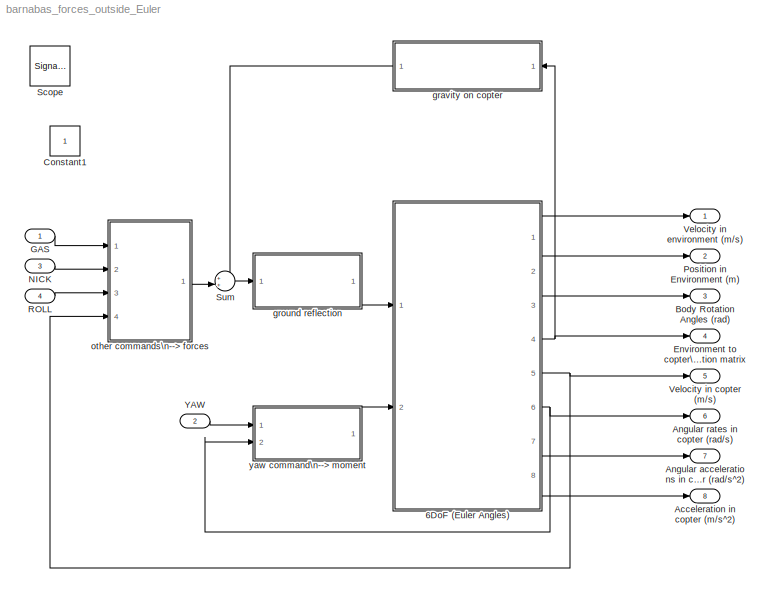
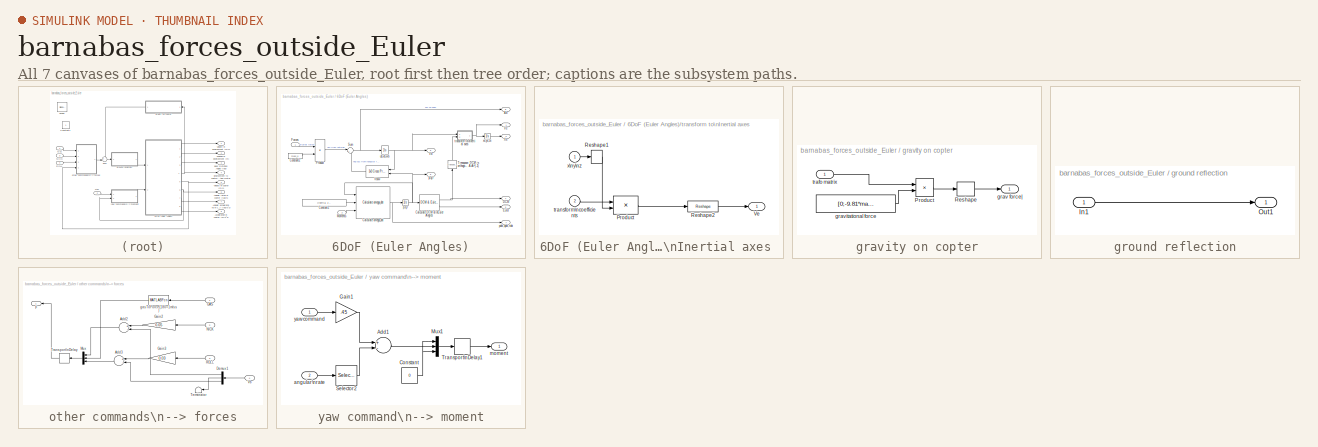
[diagram: thumbnail index - all 7 canvases of the model, root first then tree order]
MODEL barnabas_forces_outside_Euler
KIND model
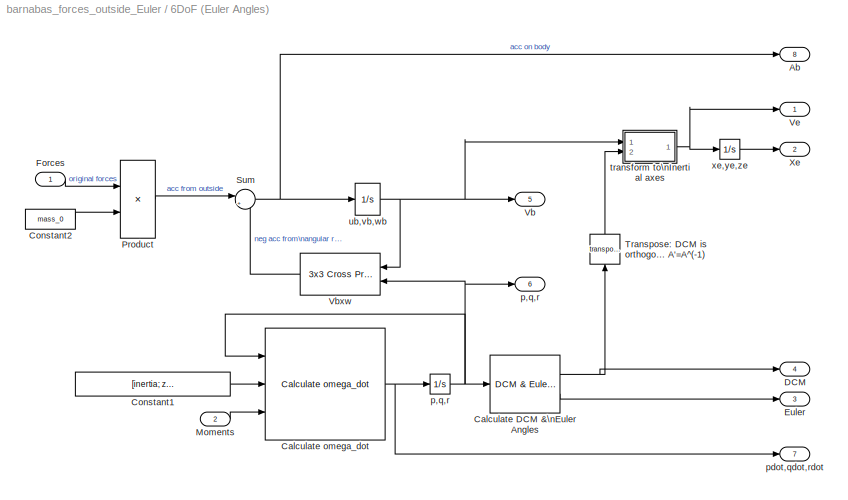
BLOCK [SubSystem] 6DoF (Euler Angles)
  FunctionWithSeparateData = off
  MaskCallbackString = |aeroicon('aeroblk6dofbody');|aeroicon('aeroblk6dofbody');|||||||||||
  MaskDescription = Integrate the six-degrees-of-freedom equations of motion in body axis.
  MaskDisplay = \n\n
  MaskEnableString = on,on,on,on,on,on,on,on,on,on,on,on,on,on
  MaskHelp = eval('asbhelp(''sixdof_euler_angles'')');
  MaskHideContents = off
  MaskIconFrame = on
  MaskIconOpaque = on
  MaskIconRotate = none
  MaskIconUnits = normalized
  MaskInitialization = \n
  MaskPortRotate = default
  MaskPromptString = Units:|Mass type:|Representation:|Initial position in inertial axes [Xe,Ye,Ze]:|Initial velocity in body axes [U,v,w]:|Initial Euler orientation [roll, pitch, yaw]:|Initial body rotation rates [p,q,r]:|Initial mass:|Empty mass:|Full mass:|Inertia:|Empty inertia matrix:|Full inertia matrix:|Gain for quaternion normalization:
  MaskSelfModifiable = on
  MaskStyleString = popup(Metric (MKS)|English (Velocity in ft/s)|English (Velocity in kts)),popup(Fixed|Simple Variable|Custom Variable),popup(Euler Angles|Quaternion),edit,edit,edit,edit,edit,edit,edit,edit,edit,edit,edit
  MaskToolTipString = on,on,on,on,on,on,on,on,on,on,on,on,on,on
  MaskTunableValueString = off,off,off,on,on,on,on,on,on,on,on,on,on,on
  MaskType = 6DoF EoM (Body Axis)
  MaskValueString = Metric (MKS)|Fixed|Euler Angles|[-23 0.12 -4]|[0 0 0]|[0 (-pi*1)/2 0]|[0 0 0]|1.5|0.5|2.0|eye(3)|eye(3)|2*eye(3)|1.0
  MaskVariables = units=&1;mtype=&2;rep=&3;xme_0=@4;Vm_0=@5;eul_0=@6;pm_0=@7;mass_0=@8;mass_e=@9;mass_f=@10;inertia=@11;inertia_e=@12;inertia_f=@13;k_quat=@14;
  MaskVisibilityString = on,on,on,on,on,on,on,on,off,off,on,off,off,off
  MinAlgLoopOccurrences = off
  Opaque = off
  Ports = [2, 8]
  PropExecContextOutsideSubsystem = off
  RTWSystemCode = Auto
  RequestExecContextInheritance = off
  SID = 3320
BLOCK [Outport] 6DoF (Euler Angles)/Ab
  IconDisplay = Port number
  Port = 8
  SID = 3320:34
BLOCK [Reference] 6DoF (Euler Angles)/Calculate DCM &\nEuler Angles  REF=aerolib6dofsys/DCM & Euler Angles (Euler)
  FunctionWithSeparateData = off
  GeneratePreprocessorConditionals = off
  Ports = [1, 2]
  RTWMemSecDataConstants = Inherit from model
  RTWMemSecDataInternal = Inherit from model
  RTWMemSecDataParameters = Inherit from model
  RTWMemSecFuncExecute = Inherit from model
  RTWMemSecFuncInitTerm = Inherit from model
  SID = 3320:3
  ShowPortLabels = FromPortIcon
  SourceBlock = aerolib6dofsys/DCM & Euler Angles (Euler)
  SourceType = DCM & Euler Angles (Euler)
  SystemSampleTime = -1
BLOCK [Reference] 6DoF (Euler Angles)/Calculate omega_dot  REF=aerolib6dofsys/Calculate omega_dot
  Ports = [3, 1]
  SID = 3320:4
  SourceBlock = aerolib6dofsys/Calculate omega_dot
  SourceType = SubSystem
BLOCK [Constant] 6DoF (Euler Angles)/Constant1
  OutDataTypeStr = Inherit: Inherit via back propagation
  SID = 3320:242
  Value = [inertia; zeros(3,3)]
BLOCK [Constant] 6DoF (Euler Angles)/Constant2
  OutDataTypeStr = Inherit: Inherit via back propagation
  SID = 3320:241
  Value = mass_0
BLOCK [Outport] 6DoF (Euler Angles)/DCM
  IconDisplay = Port number
  Port = 4
  SID = 3320:30
BLOCK [Outport] 6DoF (Euler Angles)/Euler
  IconDisplay = Port number
  Port = 3
  SID = 3320:29
BLOCK [Inport] 6DoF (Euler Angles)/Forces
  IconDisplay = Port number
  SID = 3320:1
BLOCK [Inport] 6DoF (Euler Angles)/Moments
  IconDisplay = Port number
  Port = 2
  SID = 3320:2
BLOCK [Product] 6DoF (Euler Angles)/Product
  InputSameDT = off
  Inputs = */
  Ports = [2, 1]
  RndMeth = Floor
  SID = 3320:9
BLOCK [Sum] 6DoF (Euler Angles)/Sum
  IconShape = round
  InputSameDT = off
  Inputs = |++
  OutDataTypeStr = Inherit: Inherit via internal rule
  Ports = [2, 1]
  SID = 3320:10
BLOCK [Math] 6DoF (Euler Angles)/Transpose: DCM is orthogonal => A'=A^(-1)
  Operator = transpose
  Ports = [1, 1]
  SID = 3320:11
BLOCK [Outport] 6DoF (Euler Angles)/Vb
  IconDisplay = Port number
  Port = 5
  SID = 3320:31
BLOCK [Reference] 6DoF (Euler Angles)/Vbxw  REF=aerolibutil/3x3 Cross Product
  Ports = [2, 1]
  SID = 3320:12
  SourceBlock = aerolibutil/3x3 Cross Product
  SourceType = CrossProduct
BLOCK [Outport] 6DoF (Euler Angles)/Ve
  IconDisplay = Port number
  SID = 3320:27
BLOCK [Outport] 6DoF (Euler Angles)/Xe
  IconDisplay = Port number
  Port = 2
  SID = 3320:28
BLOCK [Outport] 6DoF (Euler Angles)/p,q,r
  IconDisplay = Port number
  Port = 6
  SID = 3320:32
BLOCK [Integrator] 6DoF (Euler Angles)/p,q,r 
  InitialCondition = pm_0
  Ports = [1, 1]
  SID = 3320:17
BLOCK [Outport] 6DoF (Euler Angles)/pdot,qdot,rdot
  IconDisplay = Port number
  Port = 7
  SID = 3320:33
BLOCK [SubSystem] 6DoF (Euler Angles)/transform to\nInertial axes 
  FunctionWithSeparateData = off
  MaskDisplay = disp('L_EB')
  MaskHideContents = off
  MaskIconFrame = on
  MaskIconOpaque = on
  MaskIconRotate = port
  MaskIconUnits = autoscale
  MaskPortRotate = default
  MaskType = Vector Transformation
  MinAlgLoopOccurrences = off
  Opaque = off
  Ports = [2, 1]
  PropExecContextOutsideSubsystem = off
  RTWSystemCode = Auto
  RequestExecContextInheritance = off
  SID = 3320:18
  ShowPortLabels = none
BLOCK [Product] 6DoF (Euler Angles)/transform to\nInertial axes /Product
  Multiplication = Matrix(*)
  Ports = [2, 1]
  RndMeth = Floor
  SID = 3320:21
BLOCK [Reshape] 6DoF (Euler Angles)/transform to\nInertial axes /Reshape1
  OutputDimensionality = Column vector (2-D)
  Ports = [1, 1]
  SID = 3320:22
BLOCK [Reshape] 6DoF (Euler Angles)/transform to\nInertial axes /Reshape2
  Ports = [1, 1]
  SID = 3320:23
BLOCK [Outport] 6DoF (Euler Angles)/transform to\nInertial axes /Ve
  IconDisplay = Port number
  SID = 3320:24
BLOCK [Inport] 6DoF (Euler Angles)/transform to\nInertial axes /transform\ncoefficients
  IconDisplay = Port number
  Port = 2
  SID = 3320:20
BLOCK [Inport] 6DoF (Euler Angles)/transform to\nInertial axes /x\ny\nz
  IconDisplay = Port number
  SID = 3320:19
BLOCK [Integrator] 6DoF (Euler Angles)/ub,vb,wb
  InitialCondition = convvel(Vm_0,'m/s','m/s')
  Ports = [1, 1]
  SID = 3320:25
BLOCK [Integrator] 6DoF (Euler Angles)/xe,ye,ze
  InitialCondition = xme_0
  Ports = [1, 1]
  SID = 3320:26
BLOCK [Outport] Acceleration in copter (m//s^2)
  IconDisplay = Port number
  Port = 8
  SID = 3363
BLOCK [Outport] Angular accelerations in copter (rad//s^2)
  IconDisplay = Port number
  Port = 7
  SID = 3362
BLOCK [Outport] Angular rates in copter (rad//s)
  IconDisplay = Port number
  Port = 6
  SID = 3361
BLOCK [Outport] Body Rotation Angles (rad)
  IconDisplay = Port number
  Port = 3
  SID = 3358
BLOCK [Constant] Constant1
  IOType = siggen
  SID = 2887
BLOCK [Outport] Environment to copter\ntransformation matrix
  IconDisplay = Port number
  Port = 4
  SID = 3359
BLOCK [Inport] GAS
  IconDisplay = Port number
  SID = 3316
BLOCK [Inport] NICK
  IconDisplay = Port number
  Port = 3
  SID = 3318
BLOCK [Outport] Position in Environment (m)
  IconDisplay = Port number
  Port = 2
  SID = 3357
BLOCK [Inport] ROLL
  IconDisplay = Port number
  Port = 4
  SID = 3319
BLOCK [SignalViewerScope] Scope
  IOType = viewer
  LegendLocations = 0.64828     0.74688     0.30595     0.16521
  MaxDataPoints = 7500
  NumInputPorts = 1
  Ports = []
  RefreshTime = 0.035000
  SID = 218
  ShowDataMarkers = off
  ShowLegends = on
  YMax = 7.5
  YMin = -25
BLOCK [Sum] Sum
  IconShape = round
  InputSameDT = off
  Inputs = ++|
  OutDataTypeStr = Inherit: Inherit via internal rule
  Ports = [2, 1]
  SID = 3321
  SaturateOnIntegerOverflow = off
BLOCK [Outport] Velocity in copter (m//s)
  IconDisplay = Port number
  Port = 5
  SID = 3360
BLOCK [Outport] Velocity in environment (m//s)
  IconDisplay = Port number
  SID = 3356
BLOCK [Inport] YAW
  IconDisplay = Port number
  Port = 2
  SID = 3317
BLOCK [SubSystem] gravity on copter
  FunctionWithSeparateData = off
  MaskHideContents = off
  MinAlgLoopOccurrences = off
  Opaque = off
  Ports = [1, 1]
  PropExecContextOutsideSubsystem = off
  RTWSystemCode = Auto
  RequestExecContextInheritance = off
  SID = 3322
  TreatAsAtomicUnit = on
BLOCK [Product] gravity on copter/Product
  InputSameDT = off
  OutDataTypeStr = Inherit: Inherit via internal rule
  Ports = [2, 1]
  SID = 3324
  SaturateOnIntegerOverflow = off
BLOCK [Reshape] gravity on copter/Reshape
  Ports = [1, 1]
  SID = 3325
BLOCK [Outport] gravity on copter/grav force|
  IconDisplay = Port number
  SID = 3327
BLOCK [Constant] gravity on copter/gravitational force
  SID = 3326
  Value = [0;-9.81*mass_0;0]
  VectorParams1D = off
BLOCK [Inport] gravity on copter/trafo matrix
  IconDisplay = Port number
  SID = 3323
BLOCK [SubSystem] ground reflection
  FunctionWithSeparateData = off
  MaskHideContents = off
  MinAlgLoopOccurrences = off
  Opaque = off
  Ports = [1, 1]
  PropExecContextOutsideSubsystem = off
  RTWSystemCode = Auto
  RequestExecContextInheritance = off
  SID = 3328
  TreatAsAtomicUnit = on
BLOCK [Inport] ground reflection/In1
  IconDisplay = Port number
  SID = 3329
BLOCK [Outport] ground reflection/Out1
  IconDisplay = Port number
  SID = 3330
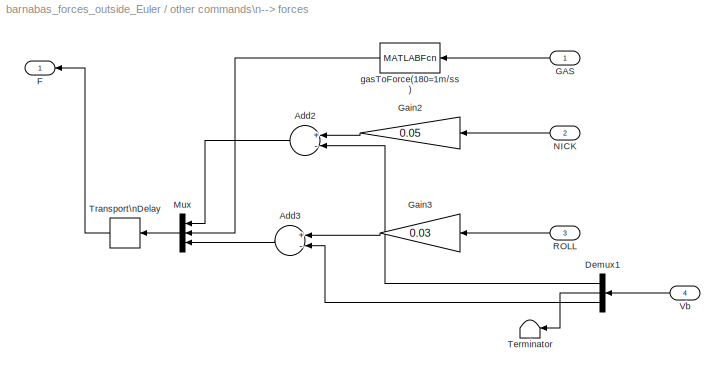
BLOCK [SubSystem] other commands\n--> forces
  FunctionWithSeparateData = off
  MaskHideContents = off
  MinAlgLoopOccurrences = off
  Opaque = off
  Ports = [4, 1]
  PropExecContextOutsideSubsystem = off
  RTWSystemCode = Auto
  RequestExecContextInheritance = off
  SID = 3331
BLOCK [Sum] other commands\n--> forces/Add2
  InputSameDT = off
  Inputs = +-
  OutDataTypeStr = Inherit: Inherit via internal rule
  Ports = [2, 1]
  SID = 3336
  SaturateOnIntegerOverflow = off
BLOCK [Sum] other commands\n--> forces/Add3
  InputSameDT = off
  Inputs = +-
  OutDataTypeStr = Inherit: Inherit via internal rule
  Ports = [2, 1]
  SID = 3337
  SaturateOnIntegerOverflow = off
BLOCK [Demux] other commands\n--> forces/Demux1
  DisplayOption = bar
  Outputs = 3
  Ports = [1, 3]
  SID = 3338
BLOCK [Outport] other commands\n--> forces/F
  IconDisplay = Port number
  SID = 3345
BLOCK [Inport] other commands\n--> forces/GAS
  IconDisplay = Port number
  SID = 3332
BLOCK [Gain] other commands\n--> forces/Gain2
  Gain = 0.05
  OutDataTypeStr = Inherit: Inherit via internal rule
  ParamDataTypeStr = Inherit: Inherit via internal rule
  SID = 3339
  SaturateOnIntegerOverflow = off
BLOCK [Gain] other commands\n--> forces/Gain3
  Gain = 0.03
  OutDataTypeStr = Inherit: Inherit via internal rule
  ParamDataTypeStr = Inherit: Inherit via internal rule
  SID = 3340
  SaturateOnIntegerOverflow = off
BLOCK [Mux] other commands\n--> forces/Mux
  DisplayOption = bar
  Inputs = 3
  Ports = [3, 1]
  SID = 3341
BLOCK [Inport] other commands\n--> forces/NICK
  IconDisplay = Port number
  Port = 2
  SID = 3333
BLOCK [Inport] other commands\n--> forces/ROLL
  IconDisplay = Port number
  Port = 3
  SID = 3334
BLOCK [Terminator] other commands\n--> forces/Terminator
  SID = 3342
BLOCK [TransportDelay] other commands\n--> forces/Transport\nDelay
  DelayTime = 0.005
  Ports = [1, 1]
  SID = 3343
BLOCK [Inport] other commands\n--> forces/Vb
  IconDisplay = Port number
  Port = 4
  SID = 3335
BLOCK [MATLABFcn] other commands\n--> forces/gasToForce(180=1m//ss)
  MATLABFcn = gasToForce
  Ports = [1, 1]
  SID = 3344
BLOCK [SubSystem] yaw command\n--> moment
  FunctionWithSeparateData = off
  MaskHideContents = off
  MinAlgLoopOccurrences = off
  Opaque = off
  Ports = [2, 1]
  PropExecContextOutsideSubsystem = off
  RTWSystemCode = Auto
  RequestExecContextInheritance = off
  SID = 3346
  TreatAsAtomicUnit = on
BLOCK [Sum] yaw command\n--> moment/Add1
  InputSameDT = off
  Inputs = +-
  OutDataTypeStr = Inherit: Inherit via internal rule
  Ports = [2, 1]
  SID = 3349
  SaturateOnIntegerOverflow = off
BLOCK [Constant] yaw command\n--> moment/Constant
  SID = 3350
  Value = 0
BLOCK [Gain] yaw command\n--> moment/Gain1
  Gain = .45
  OutDataTypeStr = Inherit: Inherit via internal rule
  ParamDataTypeStr = Inherit: Inherit via internal rule
  SID = 3351
  SaturateOnIntegerOverflow = off
BLOCK [Mux] yaw command\n--> moment/Mux1
  DisplayOption = bar
  Inputs = 3
  Ports = [3, 1]
  SID = 3352
BLOCK [Selector] yaw command\n--> moment/Selector2
  IndexMode = Zero-based
  IndexOptions = Index vector (dialog)
  Indices = [1]
  InputPortWidth = 3
  OutputSizes = 1
  Ports = [1, 1]
  SID = 3353
BLOCK [TransportDelay] yaw command\n--> moment/Transport\nDelay1
  DelayTime = 0.005
  Ports = [1, 1]
  SID = 3354
BLOCK [Inport] yaw command\n--> moment/angular\nrate
  IconDisplay = Port number
  Port = 2
  SID = 3348
BLOCK [Outport] yaw command\n--> moment/moment
  IconDisplay = Port number
  SID = 3355
BLOCK [Inport] yaw command\n--> moment/yaw command
  IconDisplay = Port number
  SID = 3347
NET 6DoF (Euler Angles)/Calculate DCM &\nEuler Angles:1 -> 6DoF (Euler Angles)/DCM:1, 6DoF (Euler Angles)/Transpose: DCM is orthogonal => A'=A^(-1):1
LINE 6DoF (Euler Angles)/Calculate DCM &\nEuler Angles:2 -> 6DoF (Euler Angles)/Euler:1
NET 6DoF (Euler Angles)/Calculate omega_dot:1 -> 6DoF (Euler Angles)/p,q,r :1, 6DoF (Euler Angles)/pdot,qdot,rdot:1
LINE 6DoF (Euler Angles)/Constant1:1 -> 6DoF (Euler Angles)/Calculate omega_dot:2
LINE 6DoF (Euler Angles)/Constant2:1 -> 6DoF (Euler Angles)/Product:2
LINE 6DoF (Euler Angles)/Forces:1 -> 6DoF (Euler Angles)/Product:1
LINE 6DoF (Euler Angles)/Moments:1 -> 6DoF (Euler Angles)/Calculate omega_dot:3
LINE 6DoF (Euler Angles)/Product:1 -> 6DoF (Euler Angles)/Sum:1
NET 6DoF (Euler Angles)/Sum:1 -> 6DoF (Euler Angles)/Ab:1, 6DoF (Euler Angles)/ub,vb,wb:1
LINE 6DoF (Euler Angles)/Transpose: DCM is orthogonal => A'=A^(-1):1 -> 6DoF (Euler Angles)/transform to\nInertial axes :2
LINE 6DoF (Euler Angles)/Vbxw:1 -> 6DoF (Euler Angles)/Sum:2
NET 6DoF (Euler Angles)/p,q,r :1 -> 6DoF (Euler Angles)/Calculate DCM &\nEuler Angles:1, 6DoF (Euler Angles)/Calculate omega_dot:1, 6DoF (Euler Angles)/Vbxw:2, 6DoF (Euler Angles)/p,q,r:1
LINE 6DoF (Euler Angles)/transform to\nInertial axes /Product:1 -> 6DoF (Euler Angles)/transform to\nInertial axes /Reshape2:1
LINE 6DoF (Euler Angles)/transform to\nInertial axes /Reshape1:1 -> 6DoF (Euler Angles)/transform to\nInertial axes /Product:2
LINE 6DoF (Euler Angles)/transform to\nInertial axes /Reshape2:1 -> 6DoF (Euler Angles)/transform to\nInertial axes /Ve:1
LINE 6DoF (Euler Angles)/transform to\nInertial axes /transform\ncoefficients:1 -> 6DoF (Euler Angles)/transform to\nInertial axes /Product:1
LINE 6DoF (Euler Angles)/transform to\nInertial axes /x\ny\nz:1 -> 6DoF (Euler Angles)/transform to\nInertial axes /Reshape1:1
NET 6DoF (Euler Angles)/transform to\nInertial axes :1 -> 6DoF (Euler Angles)/Ve:1, 6DoF (Euler Angles)/xe,ye,ze:1
NET 6DoF (Euler Angles)/ub,vb,wb:1 -> 6DoF (Euler Angles)/Vb:1, 6DoF (Euler Angles)/Vbxw:1, 6DoF (Euler Angles)/transform to\nInertial axes :1
LINE 6DoF (Euler Angles)/xe,ye,ze:1 -> 6DoF (Euler Angles)/Xe:1
LINE 6DoF (Euler Angles):1 -> Velocity in environment (m//s):1
LINE 6DoF (Euler Angles):2 -> Position in Environment (m):1
LINE 6DoF (Euler Angles):3 -> Body Rotation Angles (rad):1
NET 6DoF (Euler Angles):4 -> Environment to copter\ntransformation matrix:1, gravity on copter:1
NET 6DoF (Euler Angles):5 -> Velocity in copter (m//s):1, other commands\n--> forces:4
NET 6DoF (Euler Angles):6 -> Angular rates in copter (rad//s):1, yaw command\n--> moment:2
LINE 6DoF (Euler Angles):7 -> Angular accelerations in copter (rad//s^2):1
LINE 6DoF (Euler Angles):8 -> Acceleration in copter (m//s^2):1
LINE GAS:1 -> other commands\n--> forces:1
LINE NICK:1 -> other commands\n--> forces:2
LINE ROLL:1 -> other commands\n--> forces:3
LINE Sum:1 -> ground reflection:1
LINE YAW:1 -> yaw command\n--> moment:1
LINE gravity on copter/Product:1 -> gravity on copter/Reshape:1
LINE gravity on copter/Reshape:1 -> gravity on copter/grav force|:1
LINE gravity on copter/gravitational force:1 -> gravity on copter/Product:2
LINE gravity on copter/trafo matrix:1 -> gravity on copter/Product:1
LINE gravity on copter:1 -> Sum:1
LINE ground reflection/In1:1 -> ground reflection/Out1:1
LINE ground reflection:1 -> 6DoF (Euler Angles):1
LINE other commands\n--> forces/Add2:1 -> other commands\n--> forces/Mux:1
LINE other commands\n--> forces/Add3:1 -> other commands\n--> forces/Mux:3
LINE other commands\n--> forces/Demux1:1 -> other commands\n--> forces/Add2:2
LINE other commands\n--> forces/Demux1:2 -> other commands\n--> forces/Terminator:1
LINE other commands\n--> forces/Demux1:3 -> other commands\n--> forces/Add3:2
LINE other commands\n--> forces/GAS:1 -> other commands\n--> forces/gasToForce(180=1m//ss):1
LINE other commands\n--> forces/Gain2:1 -> other commands\n--> forces/Add2:1
LINE other commands\n--> forces/Gain3:1 -> other commands\n--> forces/Add3:1
LINE other commands\n--> forces/Mux:1 -> other commands\n--> forces/Transport\nDelay:1
LINE other commands\n--> forces/NICK:1 -> other commands\n--> forces/Gain2:1
LINE other commands\n--> forces/ROLL:1 -> other commands\n--> forces/Gain3:1
LINE other commands\n--> forces/Transport\nDelay:1 -> other commands\n--> forces/F:1
LINE other commands\n--> forces/Vb:1 -> other commands\n--> forces/Demux1:1
LINE other commands\n--> forces/gasToForce(180=1m//ss):1 -> other commands\n--> forces/Mux:2
LINE other commands\n--> forces:1 -> Sum:2
LINE yaw command\n--> moment/Add1:1 -> yaw command\n--> moment/Mux1:2
NET yaw command\n--> moment/Constant:1 -> yaw command\n--> moment/Mux1:1, yaw command\n--> moment/Mux1:3
LINE yaw command\n--> moment/Gain1:1 -> yaw command\n--> moment/Add1:1
LINE yaw command\n--> moment/Mux1:1 -> yaw command\n--> moment/Transport\nDelay1:1
LINE yaw command\n--> moment/Selector2:1 -> yaw command\n--> moment/Add1:2
LINE yaw command\n--> moment/Transport\nDelay1:1 -> yaw command\n--> moment/moment:1
LINE yaw command\n--> moment/angular\nrate:1 -> yaw command\n--> moment/Selector2:1
LINE yaw command\n--> moment/yaw command:1 -> yaw command\n--> moment/Gain1:1
LINE yaw command\n--> moment:1 -> 6DoF (Euler Angles):2
note: NET lines group one-source signal fan-out (src -> all destinations, sorted); 1:1 wires keep LINE
